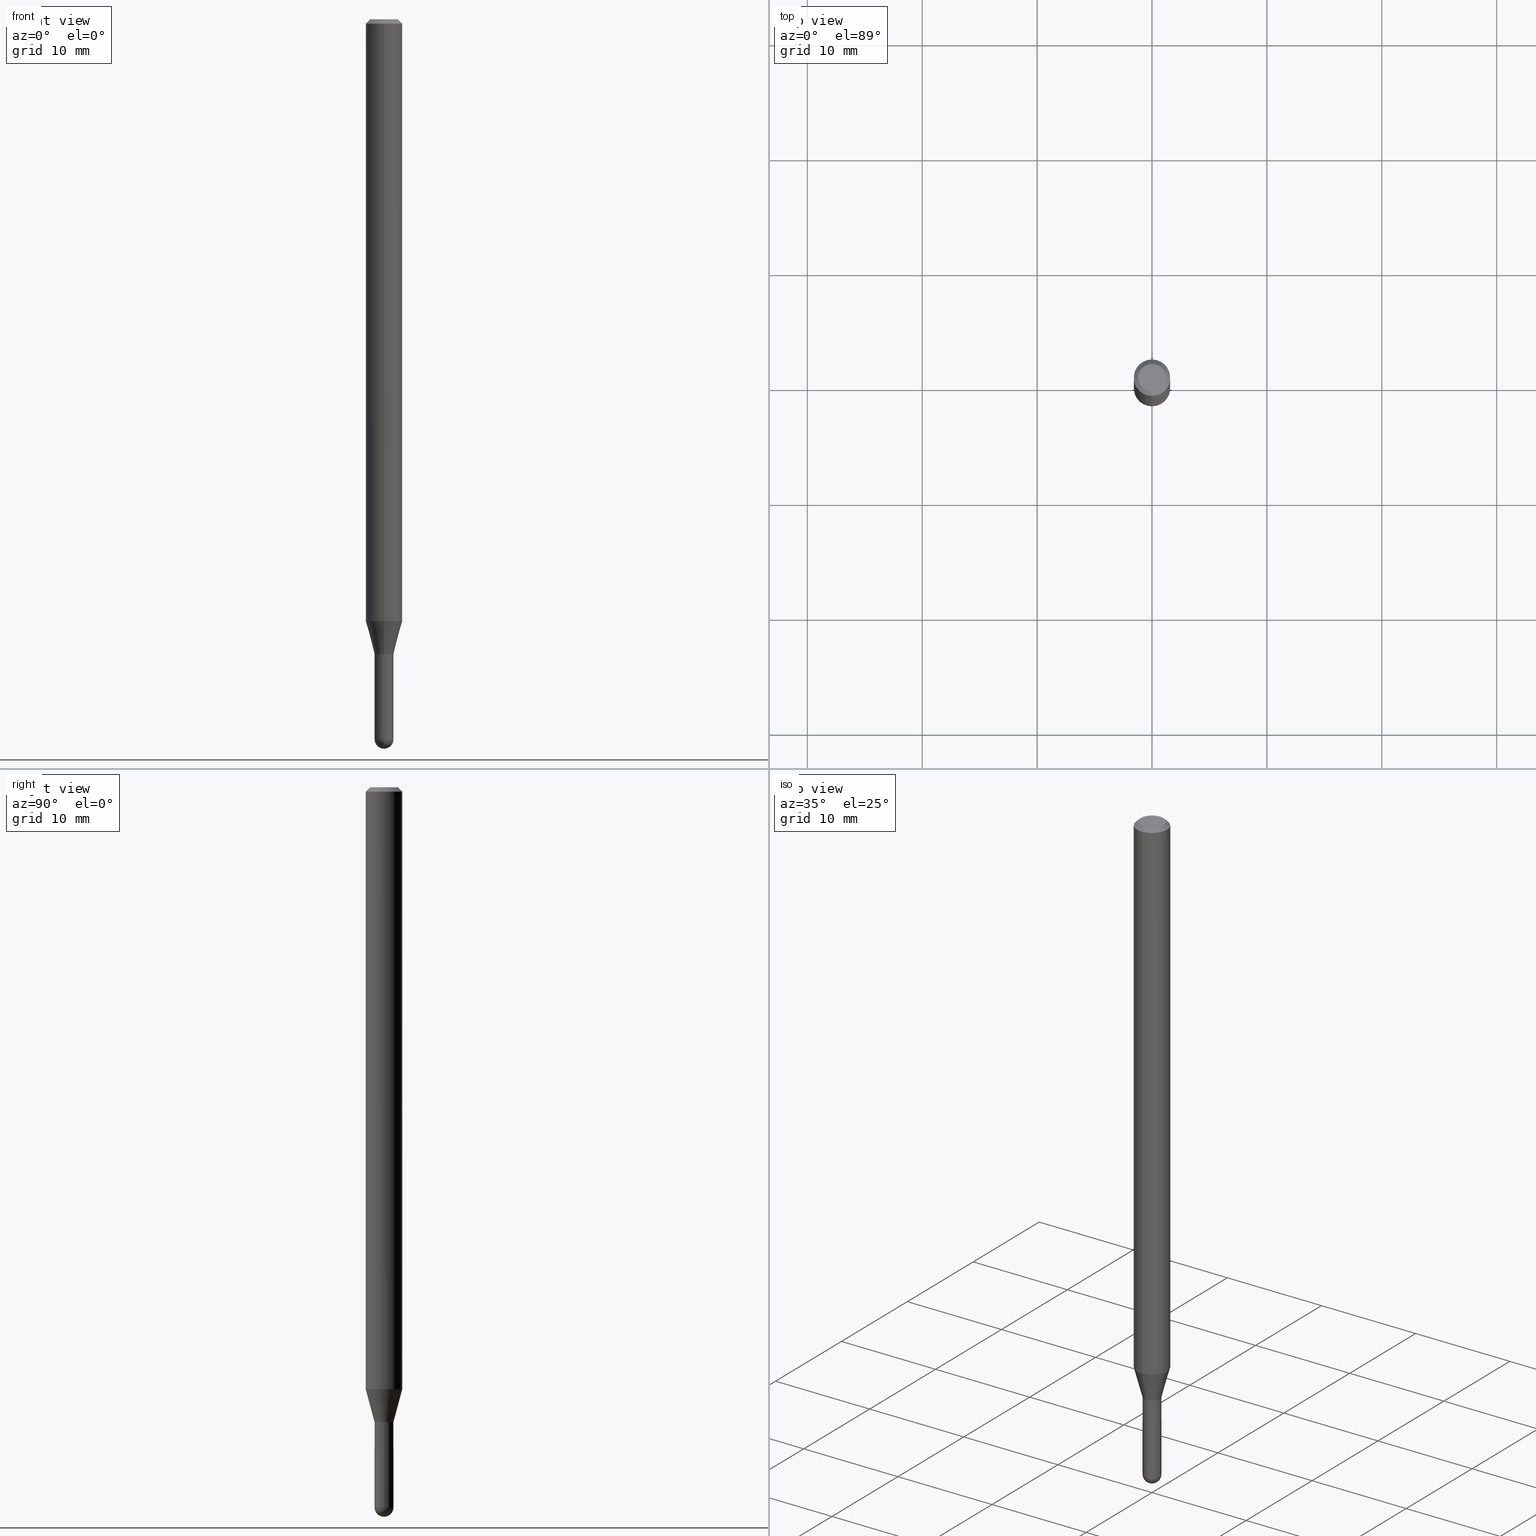
[diagram: canonical four-view strip — front | top / right | iso, engineering-drawing reading convention]
A machine part, canonical four-view strip (front | top / right | iso — engineering-drawing reading convention). The complete STEP part file that produces these views, byte-faithful:
ISO-10303-21;
HEADER;
FILE_DESCRIPTION (( 'STEP AP203' ),
    '1' );
FILE_NAME ('04468.STEP',
    '2024-03-08T19:49:59',
    ( '' ),
    ( '' ),
    'SwSTEP 2.0',
    'SolidWorks 2023',
    '' );
FILE_SCHEMA (( 'CONFIG_CONTROL_DESIGN' ));
ENDSEC;

DATA;
#1 = ADVANCED_FACE ( 'NONE', ( #213 ), #429, .T. ) ;
#2 = EDGE_LOOP ( 'NONE', ( #212, #403, #172, #53 ) ) ;
#3 = SHAPE_DEFINITION_REPRESENTATION ( #170, #280 ) ;
#4 = AXIS2_PLACEMENT_3D ( 'NONE', #461, #453, #380 ) ;
#5 = LOCAL_TIME ( 14, 49, 59.00000000000000000, #447 ) ;
#6 = DESIGN_CONTEXT ( 'detailed design', #73, 'design' ) ;
#7 = DIRECTION ( 'NONE',  ( -6.982962677686265133E-15, -1.000000000000000000, 0.000000000000000000 ) ) ;
#8 = DIRECTION ( 'NONE',  ( -2.445428605324870207E-29, 3.491538908763138017E-15, 1.000000000000000000 ) ) ;
#9 = LINE ( 'NONE', #167, #502 ) ;
#10 = ORIENTED_EDGE ( 'NONE', *, *, #84, .T. ) ;
#11 = CARTESIAN_POINT ( 'NONE',  ( 5.318807216581592405E-29, -7.594097126559824732E-15, -2.175000000000000266 ) ) ;
#12 = ADVANCED_FACE ( 'NONE', ( #216 ), #378, .F. ) ;
#13 = DIRECTION ( 'NONE',  ( -2.445428605324870207E-29, 3.491538908763138017E-15, 1.000000000000000000 ) ) ;
#14 = CARTESIAN_POINT ( 'NONE',  ( 6.034194279261823970E-29, -8.615230203595461689E-15, -2.467499999999999805 ) ) ;
#15 = VERTEX_POINT ( 'NONE', #16 ) ;
#16 = CARTESIAN_POINT ( 'NONE',  ( -2.309263891219727135E-16, -0.03250000000000868861, -2.467499999999999805 ) ) ;
#17 = DIRECTION ( 'NONE',  ( -2.445468806185136597E-29, 3.491481338843145583E-15, 1.000000000000000000 ) ) ;
#18 = ORIENTED_EDGE ( 'NONE', *, *, #84, .F. ) ;
#19 = AXIS2_PLACEMENT_3D ( 'NONE', #36, #355, #155 ) ;
#20 = CARTESIAN_POINT ( 'NONE',  ( 5.318807216581592405E-29, -7.594097126559824732E-15, -2.175000000000000266 ) ) ;
#21 = EDGE_CURVE ( 'NONE', #59, #411, #201, .T. ) ;
#22 = DIRECTION ( 'NONE',  ( -6.982962677686266711E-15, -1.000000000000000000, 3.491538908763138017E-15 ) ) ;
#23 = DIRECTION ( 'NONE',  ( -2.445428605324870207E-29, 3.491538908763138017E-15, 1.000000000000000000 ) ) ;
#24 = CARTESIAN_POINT ( 'NONE',  ( 2.291500322826851699E-16, 0.03199999999999240258, -2.175000000000000266 ) ) ;
#25 = APPROVAL ( #509, 'UNSPECIFIED' ) ;
#26 = DIRECTION ( 'NONE',  ( 1.839019923739650408E-15, 0.2588190451025320082, 0.9659258262890650926 ) ) ;
#27 = DIRECTION ( 'NONE',  ( -2.445428605324870207E-29, 3.491538908763138017E-15, 1.000000000000000000 ) ) ;
#28 = PERSON_AND_ORGANIZATION_ROLE ( 'creator' ) ;
#29 = DIRECTION ( 'NONE',  ( -2.445428605324870207E-29, 3.491538908763138017E-15, 1.000000000000000000 ) ) ;
#30 = AXIS2_PLACEMENT_3D ( 'NONE', #318, #237, #476 ) ;
#31 = FACE_OUTER_BOUND ( 'NONE', #199, .T. ) ;
#32 = CARTESIAN_POINT ( 'NONE',  ( -4.287811248607203282E-16, -0.06250000000000005551, -0.01499999999999984852 ) ) ;
#33 = CARTESIAN_POINT ( 'NONE',  ( 0.000000000000000000, 0.000000000000000000, 0.000000000000000000 ) ) ;
#34 = LINE ( 'NONE', #385, #226 ) ;
#35 = EDGE_CURVE ( 'NONE', #401, #92, #107, .T. ) ;
#36 = CARTESIAN_POINT ( 'NONE',  ( 5.045013302540962322E-29, -7.203179108436612378E-15, -2.063038475772938085 ) ) ;
#37 = DATE_AND_TIME ( #234, #187 ) ;
#38 = CC_DESIGN_APPROVAL ( #25, ( #398 ) ) ;
#39 = AXIS2_PLACEMENT_3D ( 'NONE', #11, #171, #506 ) ;
#40 = LINE ( 'NONE', #159, #85 ) ;
#41 = ORIENTED_EDGE ( 'NONE', *, *, #314, .T. ) ;
#42 = ORIENTED_EDGE ( 'NONE', *, *, #487, .T. ) ;
#43 = CIRCLE ( 'NONE', #434, 0.03250000000000000111 ) ;
#44 = ORIENTED_EDGE ( 'NONE', *, *, #268, .T. ) ;
#45 = ORIENTED_EDGE ( 'NONE', *, *, #121, .F. ) ;
#46 = AXIS2_PLACEMENT_3D ( 'NONE', #192, #265, #302 ) ;
#47 = LENGTH_MEASURE_WITH_UNIT ( LENGTH_MEASURE( 0.02539999999999999897 ), #218 );
#48 = EDGE_CURVE ( 'NONE', #452, #416, #9, .T. ) ;
#49 = AXIS2_PLACEMENT_3D ( 'NONE', #458, #67, #181 ) ;
#50 = EDGE_LOOP ( 'NONE', ( #472, #399, #377, #481 ) ) ;
#51 = FACE_OUTER_BOUND ( 'NONE', #215, .T. ) ;
#52 = PRODUCT_RELATED_PRODUCT_CATEGORY ( 'detail', '', ( #448 ) ) ;
#53 = ORIENTED_EDGE ( 'NONE', *, *, #487, .F. ) ;
#54 = ORIENTED_EDGE ( 'NONE', *, *, #374, .F. ) ;
#55 = PERSON_AND_ORGANIZATION ( #300, #466 ) ;
#56 = ORIENTED_EDGE ( 'NONE', *, *, #251, .T. ) ;
#57 = EDGE_CURVE ( 'NONE', #479, #133, #177, .T. ) ;
#58 = EDGE_LOOP ( 'NONE', ( #54, #103, #164, #440 ) ) ;
#59 = VERTEX_POINT ( 'NONE', #407 ) ;
#60 = CLOSED_SHELL ( 'NONE', ( #198, #384, #449, #255, #80, #169, #480, #1, #166, #12, #459, #211 ) ) ;
#61 = CARTESIAN_POINT ( 'NONE',  ( 3.375077994861001501E-16, 0.03249999999999260425, -2.175000000000000266 ) ) ;
#62 = CARTESIAN_POINT ( 'NONE',  ( -2.269462870247518301E-16, -0.03250000000000779349, -2.175000000000000266 ) ) ;
#63 = CARTESIAN_POINT ( 'NONE',  ( 0.000000000000000000, 0.000000000000000000, 0.000000000000000000 ) ) ;
#64 = DIRECTION ( 'NONE',  ( 1.000000000000000000, -6.982962677686267499E-15, 4.876176775795936353E-29 ) ) ;
#65 = CARTESIAN_POINT ( 'NONE',  ( 5.045013302540962322E-29, -7.203179108436612378E-15, -2.063038475772938085 ) ) ;
#66 = SECURITY_CLASSIFICATION_LEVEL ( 'unclassified' ) ;
#67 = DIRECTION ( 'NONE',  ( -1.000000000000000000, 7.105427357601001070E-15, -4.926315508542082329E-29 ) ) ;
#68 = DIRECTION ( 'NONE',  ( 6.982962677686265922E-15, 1.000000000000000000, -3.491538908763138017E-15 ) ) ;
#69 = EDGE_CURVE ( 'NONE', #479, #401, #337, .T. ) ;
#70 = CARTESIAN_POINT ( 'NONE',  ( -4.364351673553413302E-16, -0.06250000000000723033, -2.063038475772938085 ) ) ;
#71 = DIRECTION ( 'NONE',  ( 6.982962677686266711E-15, 1.000000000000000000, 0.000000000000000000 ) ) ;
#72 = PERSON_AND_ORGANIZATION ( #300, #466 ) ;
#73 = APPLICATION_CONTEXT ( 'configuration controlled 3d designs of mechanical parts and assemblies' ) ;
#74 = ORIENTED_EDGE ( 'NONE', *, *, #240, .F. ) ;
#75 = MANIFOLD_SOLID_BREP ( 'Body-Move/Copy2[2]', #60 ) ;
#76 = DIRECTION ( 'NONE',  ( 1.000000000000000000, -6.982962677686287221E-15, 0.000000000000000000 ) ) ;
#77 = CARTESIAN_POINT ( 'NONE',  ( -4.364351673553912750E-16, -0.06250000000000005551, -0.01499999999999984852 ) ) ;
#78 = COORDINATED_UNIVERSAL_TIME_OFFSET ( 5, 0, .BEHIND. ) ;
#79 = FACE_OUTER_BOUND ( 'NONE', #2, .T. ) ;
#80 = ADVANCED_FACE ( 'NONE', ( #370 ), #369, .T. ) ;
#81 = APPROVAL_ROLE ( '' ) ;
#82 = AXIS2_PLACEMENT_3D ( 'NONE', #431, #152, #312 ) ;
#83 = ORIENTED_EDGE ( 'NONE', *, *, #511, .T. ) ;
#84 = EDGE_CURVE ( 'NONE', #133, #92, #410, .T. ) ;
#85 = VECTOR ( 'NONE', #364, 39.37007874015748143 ) ;
#86 = CC_DESIGN_APPROVAL ( #389, ( #468 ) ) ;
#87 = VECTOR ( 'NONE', #257, 39.37007874015748143 ) ;
#88 = EDGE_LOOP ( 'NONE', ( #443, #243, #238, #130 ) ) ;
#89 = ORIENTED_EDGE ( 'NONE', *, *, #473, .T. ) ;
#90 = CARTESIAN_POINT ( 'NONE',  ( 0.000000000000000000, 0.000000000000000000, 0.000000000000000000 ) ) ;
#91 = SPHERICAL_SURFACE ( 'NONE', #30, 0.03250000000000013989 ) ;
#92 = VERTEX_POINT ( 'NONE', #150 ) ;
#93 = CARTESIAN_POINT ( 'NONE',  ( -0.03250000000000000111, -7.873674668667618619E-15, -2.175000000000000266 ) ) ;
#94 = ORIENTED_EDGE ( 'NONE', *, *, #35, .F. ) ;
#95 = CIRCLE ( 'NONE', #46, 0.03250000000000000111 ) ;
#96 = DATE_AND_TIME ( #292, #445 ) ;
#97 = AXIS2_PLACEMENT_3D ( 'NONE', #20, #180, #372 ) ;
#98 = VECTOR ( 'NONE', #106, 39.37007874015748143 ) ;
#99 = VERTEX_POINT ( 'NONE', #266 ) ;
#100 = EDGE_LOOP ( 'NONE', ( #366, #365, #361, #18 ) ) ;
#101 = CALENDAR_DATE ( 2024, 8, 3 ) ;
#102 = ORIENTED_EDGE ( 'NONE', *, *, #176, .T. ) ;
#103 = ORIENTED_EDGE ( 'NONE', *, *, #408, .T. ) ;
#104 = CARTESIAN_POINT ( 'NONE',  ( 3.668142907987321705E-31, -5.237308363144729655E-17, -0.01500000000000006710 ) ) ;
#105 = EDGE_LOOP ( 'NONE', ( #433, #89, #42, #83, #486 ) ) ;
#106 = DIRECTION ( 'NONE',  ( -2.445428605324870207E-29, 3.491538908763138017E-15, 1.000000000000000000 ) ) ;
#107 = LINE ( 'NONE', #326, #87 ) ;
#108 = CARTESIAN_POINT ( 'NONE',  ( 5.318807216581592405E-29, -7.594097126559824732E-15, -2.175000000000000266 ) ) ;
#109 = DIRECTION ( 'NONE',  ( -6.982962677686265922E-15, -1.000000000000000000, 3.491538908763137622E-15 ) ) ;
#110 = PERSON_AND_ORGANIZATION ( #300, #466 ) ;
#111 = LINE ( 'NONE', #195, #98 ) ;
#112 = CYLINDRICAL_SURFACE ( 'NONE', #503, 0.03250000000000006356 ) ;
#113 = EDGE_CURVE ( 'NONE', #125, #416, #118, .T. ) ;
#114 = DIRECTION ( 'NONE',  ( -2.445428605324870207E-29, 3.491538908763138017E-15, 1.000000000000000000 ) ) ;
#115 = CARTESIAN_POINT ( 'NONE',  ( 5.317584502278931047E-29, -7.592351357105445455E-15, -2.174500000000000099 ) ) ;
#116 = AXIS2_PLACEMENT_3D ( 'NONE', #90, #376, #138 ) ;
#117 = LINE ( 'NONE', #32, #442 ) ;
#118 = LINE ( 'NONE', #182, #358 ) ;
#119 = ADVANCED_FACE ( 'NONE', ( #31 ), #196, .F. ) ;
#120 = CARTESIAN_POINT ( 'NONE',  ( 2.309263891220329627E-16, 0.03250000000000006356, -1.134750145348021985E-16 ) ) ;
#121 = EDGE_CURVE ( 'NONE', #179, #253, #259, .T. ) ;
#122 = AXIS2_PLACEMENT_3D ( 'NONE', #65, #27, #308 ) ;
#123 = DIRECTION ( 'NONE',  ( -2.445428605324870207E-29, 3.491538908763138017E-15, 1.000000000000000000 ) ) ;
#124 = ADVANCED_FACE ( 'NONE', ( #190 ), #423, .T. ) ;
#125 = VERTEX_POINT ( 'NONE', #392 ) ;
#126 = CARTESIAN_POINT ( 'NONE',  ( 6.112282370242925616E-29, -8.730693398156478663E-15, -2.500000000000000000 ) ) ;
#127 = CONICAL_SURFACE ( 'NONE', #82, 0.03250000000000020234, 0.2617993877991576235 ) ;
#128 = ORIENTED_EDGE ( 'NONE', *, *, #202, .T. ) ;
#129 = DIRECTION ( 'NONE',  ( 6.982962677686265922E-15, 1.000000000000000000, -3.483106191921935554E-15 ) ) ;
#130 = ORIENTED_EDGE ( 'NONE', *, *, #176, .F. ) ;
#131 = ADVANCED_FACE ( 'NONE', ( #316 ), #223, .T. ) ;
#132 = CARTESIAN_POINT ( 'NONE',  ( 3.668142907987321705E-31, -5.237308363144729655E-17, -0.01500000000000006710 ) ) ;
#133 = VERTEX_POINT ( 'NONE', #498 ) ;
#134 = ORIENTED_EDGE ( 'NONE', *, *, #437, .T. ) ;
#135 = AXIS2_PLACEMENT_3D ( 'NONE', #391, #351, #64 ) ;
#136 = DIRECTION ( 'NONE',  ( -6.982962677686265922E-15, -1.000000000000000000, 3.483106191921935554E-15 ) ) ;
#137 = EDGE_LOOP ( 'NONE', ( #325, #286, #254, #293 ) ) ;
#138 = DIRECTION ( 'NONE',  ( -6.982962677686265922E-15, -1.000000000000000000, 3.491538908763138017E-15 ) ) ;
#139 = ORIENTED_EDGE ( 'NONE', *, *, #363, .T. ) ;
#140 = DIRECTION ( 'NONE',  ( 6.982962677686266711E-15, 1.000000000000000000, 0.000000000000000000 ) ) ;
#141 = VERTEX_POINT ( 'NONE', #350 ) ;
#142 = CARTESIAN_POINT ( 'NONE',  ( 5.318807216581592405E-29, -7.594097126559824732E-15, -2.175000000000000266 ) ) ;
#143 = DIRECTION ( 'NONE',  ( 2.445428605324869926E-29, -3.491538908763138017E-15, -1.000000000000000000 ) ) ;
#144 = MECHANICAL_CONTEXT ( 'NONE', #231, 'mechanical' ) ;
#145 = AXIS2_PLACEMENT_3D ( 'NONE', #294, #17, #333 ) ;
#146 = CIRCLE ( 'NONE', #197, 0.04749999999999999362 ) ;
#147 = DIRECTION ( 'NONE',  ( -6.982962677686265922E-15, -1.000000000000000000, 0.000000000000000000 ) ) ;
#148 = DIRECTION ( 'NONE',  ( -2.445428605324870207E-29, 3.491538908763138017E-15, 1.000000000000000000 ) ) ;
#149 = DIRECTION ( 'NONE',  ( 1.000000000000000000, -6.982962677686265922E-15, 4.883557194083112340E-29 ) ) ;
#150 = CARTESIAN_POINT ( 'NONE',  ( -2.269462870247506961E-16, -0.03250000000000762695, -2.174500000000000099 ) ) ;
#151 = CARTESIAN_POINT ( 'NONE',  ( 5.318807216581592405E-29, -7.594097126559824732E-15, -2.175000000000000266 ) ) ;
#152 = DIRECTION ( 'NONE',  ( -2.445428605324870207E-29, 3.491538908763138017E-15, 1.000000000000000000 ) ) ;
#153 = EDGE_CURVE ( 'NONE', #253, #133, #352, .T. ) ;
#154 = CONICAL_SURFACE ( 'NONE', #4, 0.06250000000000000000, 0.7853981633974483900 ) ;
#155 = DIRECTION ( 'NONE',  ( -6.982962677686265922E-15, -1.000000000000000000, 4.370956789862821150E-15 ) ) ;
#156 = CC_DESIGN_DATE_AND_TIME_ASSIGNMENT ( #37, #432, ( #398 ) ) ;
#157 = APPROVAL_DATE_TIME ( #347, #25 ) ;
#158 = CARTESIAN_POINT ( 'NONE',  ( 6.034194279261823970E-29, -8.615230203595461689E-15, -2.467499999999999805 ) ) ;
#159 = CARTESIAN_POINT ( 'NONE',  ( -0.03250000000000000111, 2.309263891220325683E-16, -1.598653904332844407E-30 ) ) ;
#160 = CIRCLE ( 'NONE', #122, 0.06250000000000000000 ) ;
#161 = ORIENTED_EDGE ( 'NONE', *, *, #153, .T. ) ;
#162 = AXIS2_PLACEMENT_3D ( 'NONE', #273, #395, #346 ) ;
#163 = APPROVAL_PERSON_ORGANIZATION ( #55, #371, #287 ) ;
#164 = ORIENTED_EDGE ( 'NONE', *, *, #473, .F. ) ;
#165 = DIRECTION ( 'NONE',  ( -6.982962677686265133E-15, -1.000000000000000000, 0.000000000000000000 ) ) ;
#166 = ADVANCED_FACE ( 'NONE', ( #263 ), #508, .F. ) ;
#167 = CARTESIAN_POINT ( 'NONE',  ( 4.440892098500625669E-16, 0.06250000000000000000, -2.182211817976961260E-16 ) ) ;
#168 = AXIS2_PLACEMENT_3D ( 'NONE', #33, #504, #344 ) ;
#169 = ADVANCED_FACE ( 'NONE', ( #383 ), #127, .T. ) ;
#170 = PRODUCT_DEFINITION_SHAPE ( 'NONE', 'NONE',  #436 ) ;
#171 = DIRECTION ( 'NONE',  ( -2.445428605324870207E-29, 3.491538908763138017E-15, 1.000000000000000000 ) ) ;
#172 = ORIENTED_EDGE ( 'NONE', *, *, #363, .F. ) ;
#173 = DIRECTION ( 'NONE',  ( -2.445428605324870207E-29, 3.491538908763138017E-15, 1.000000000000000000 ) ) ;
#174 = PERSON_AND_ORGANIZATION_ROLE ( 'creator' ) ;
#175 = VERTEX_POINT ( 'NONE', #77 ) ;
#176 = EDGE_CURVE ( 'NONE', #452, #298, #405, .T. ) ;
#177 = LINE ( 'NONE', #242, #269 ) ;
#178 = AXIS2_PLACEMENT_3D ( 'NONE', #63, #299, #455 ) ;
#179 = VERTEX_POINT ( 'NONE', #225 ) ;
#180 = DIRECTION ( 'NONE',  ( -2.445428605324869926E-29, 3.491538908763138017E-15, 1.000000000000000000 ) ) ;
#181 = DIRECTION ( 'NONE',  ( -7.105427357601000281E-15, -1.000000000000000000, 0.000000000000000000 ) ) ;
#182 = CARTESIAN_POINT ( 'NONE',  ( 4.364351673553919652E-16, 0.06249999999999995143, -0.01500000000000028394 ) ) ;
#183 = DIRECTION ( 'NONE',  ( -2.445468806185136877E-29, 3.491481338843145188E-15, 1.000000000000000000 ) ) ;
#184 = DIRECTION ( 'NONE',  ( -6.982962677686265133E-15, -1.000000000000000000, 0.000000000000000000 ) ) ;
#185 = CARTESIAN_POINT ( 'NONE',  ( 3.316907271900976096E-16, 0.04749999999999999362, -1.985968479068473336E-16 ) ) ;
#186 = AXIS2_PLACEMENT_3D ( 'NONE', #501, #29, #147 ) ;
#187 = LOCAL_TIME ( 14, 49, 59.00000000000000000, #78 ) ;
#188 = CIRCLE ( 'NONE', #478, 0.04749999999999999362 ) ;
#189 = CYLINDRICAL_SURFACE ( 'NONE', #135, 0.03250000000000000111 ) ;
#190 = FACE_OUTER_BOUND ( 'NONE', #58, .T. ) ;
#191 = APPROVAL_STATUS ( 'not_yet_approved' ) ;
#192 = CARTESIAN_POINT ( 'NONE',  ( 5.318894653452672995E-29, -7.593971911983841869E-15, -2.175000000000000266 ) ) ;
#193 = EDGE_CURVE ( 'NONE', #179, #298, #470, .T. ) ;
#194 = DIRECTION ( 'NONE',  ( -6.982962677686265133E-15, -1.000000000000000000, 0.000000000000000000 ) ) ;
#195 = CARTESIAN_POINT ( 'NONE',  ( -4.364351673553916201E-16, -0.06250000000000000000, 2.182211817976961260E-16 ) ) ;
#196 = PLANE ( 'NONE',  #162 ) ;
#197 = AXIS2_PLACEMENT_3D ( 'NONE', #261, #148, #421 ) ;
#198 = ADVANCED_FACE ( 'NONE', ( #220 ), #381, .F. ) ;
#199 = EDGE_LOOP ( 'NONE', ( #288, #44 ) ) ;
#200 = CIRCLE ( 'NONE', #186, 0.03249999999999992478 ) ;
#201 = CIRCLE ( 'NONE', #206, 0.03250000000000000111 ) ;
#202 = EDGE_CURVE ( 'NONE', #419, #125, #146, .T. ) ;
#203 = ORIENTED_EDGE ( 'NONE', *, *, #496, .F. ) ;
#204 = EDGE_CURVE ( 'NONE', #298, #452, #160, .T. ) ;
#205 = AXIS2_PLACEMENT_3D ( 'NONE', #345, #311, #76 ) ;
#206 = AXIS2_PLACEMENT_3D ( 'NONE', #14, #342, #494 ) ;
#207 = DIRECTION ( 'NONE',  ( -6.982962677686265133E-15, -1.000000000000000000, 0.000000000000000000 ) ) ;
#208 =( CONVERSION_BASED_UNIT ( 'INCH', #47 ) LENGTH_UNIT ( ) NAMED_UNIT ( #359 ) );
#209 = CLOSED_SHELL ( 'NONE', ( #131, #124, #119, #464, #327 ) ) ;
#210 = EDGE_LOOP ( 'NONE', ( #362, #439, #435, #94 ) ) ;
#211 = ADVANCED_FACE ( 'NONE', ( #460 ), #112, .F. ) ;
#212 = ORIENTED_EDGE ( 'NONE', *, *, #408, .F. ) ;
#213 = FACE_OUTER_BOUND ( 'NONE', #137, .T. ) ;
#214 = DATE_TIME_ROLE ( 'creation_date' ) ;
#215 = EDGE_LOOP ( 'NONE', ( #368, #102, #248, #203 ) ) ;
#216 = FACE_OUTER_BOUND ( 'NONE', #328, .T. ) ;
#217 = VECTOR ( 'NONE', #183, 39.37007874015748143 ) ;
#218 =( LENGTH_UNIT ( ) NAMED_UNIT ( * ) SI_UNIT ( $, .METRE. ) );
#219 = CARTESIAN_POINT ( 'NONE',  ( -3.773273898774340269E-16, -0.04749999999999999362, 1.003505986850524622E-16 ) ) ;
#220 = FACE_OUTER_BOUND ( 'NONE', #249, .T. ) ;
#221 = EDGE_CURVE ( 'NONE', #411, #252, #40, .T. ) ;
#222 = FACE_OUTER_BOUND ( 'NONE', #210, .T. ) ;
#223 = CYLINDRICAL_SURFACE ( 'NONE', #168, 0.03250000000000000111 ) ;
#224 = CARTESIAN_POINT ( 'NONE',  ( -2.234548056859072945E-16, -0.03200000000000759182, -2.175000000000000266 ) ) ;
#225 = CARTESIAN_POINT ( 'NONE',  ( -2.269462870247518301E-16, -0.03250000000000779349, -2.175000000000000266 ) ) ;
#226 = VECTOR ( 'NONE', #505, 39.37007874015748143 ) ;
#227 = CC_DESIGN_APPROVAL ( #371, ( #436 ) ) ;
#228 = DIRECTION ( 'NONE',  ( -4.851104656540964275E-15, -0.7071067811865500152, -0.7071067811865450192 ) ) ;
#229 = DIRECTION ( 'NONE',  ( -6.982962677686265922E-15, -1.000000000000000000, 0.000000000000000000 ) ) ;
#230 = PERSON_AND_ORGANIZATION_ROLE ( 'classification_officer' ) ;
#231 = APPLICATION_CONTEXT ( 'configuration controlled 3d designs of mechanical parts and assemblies' ) ;
#232 = CARTESIAN_POINT ( 'NONE',  ( 4.440892098501133991E-16, 0.06249999999999995143, -0.01500000000000028394 ) ) ;
#233 = DIRECTION ( 'NONE',  ( 4.937700262164548042E-15, 0.7071067811865451302, -0.7071067811865499042 ) ) ;
#234 = CALENDAR_DATE ( 2024, 8, 3 ) ;
#235 = CALENDAR_DATE ( 2024, 8, 3 ) ;
#236 = CARTESIAN_POINT ( 'NONE',  ( 0.000000000000000000, 0.000000000000000000, 0.000000000000000000 ) ) ;
#237 = DIRECTION ( 'NONE',  ( -1.000000000000000000, 6.982962677686266711E-15, -4.883557194083112901E-29 ) ) ;
#238 = ORIENTED_EDGE ( 'NONE', *, *, #193, .T. ) ;
#239 = CIRCLE ( 'NONE', #319, 0.03200000000000000067 ) ;
#240 = EDGE_CURVE ( 'NONE', #253, #179, #289, .T. ) ;
#241 = AXIS2_PLACEMENT_3D ( 'NONE', #428, #467, #71 ) ;
#242 = CARTESIAN_POINT ( 'NONE',  ( 2.273736754432852137E-16, 0.03199999999999240258, -2.175000000000000266 ) ) ;
#243 = ORIENTED_EDGE ( 'NONE', *, *, #240, .T. ) ;
#244 = AXIS2_PLACEMENT_3D ( 'NONE', #108, #349, #382 ) ;
#245 = VERTEX_POINT ( 'NONE', #126 ) ;
#246 = APPROVAL_DATE_TIME ( #96, #371 ) ;
#247 = AXIS2_PLACEMENT_3D ( 'NONE', #497, #149, #140 ) ;
#248 = ORIENTED_EDGE ( 'NONE', *, *, #317, .T. ) ;
#249 = EDGE_LOOP ( 'NONE', ( #74, #161, #10, #414 ) ) ;
#250 = DATE_AND_TIME ( #101, #5 ) ;
#251 = EDGE_CURVE ( 'NONE', #175, #416, #427, .T. ) ;
#252 = VERTEX_POINT ( 'NONE', #93 ) ;
#253 = VERTEX_POINT ( 'NONE', #61 ) ;
#254 = ORIENTED_EDGE ( 'NONE', *, *, #113, .T. ) ;
#255 = ADVANCED_FACE ( 'NONE', ( #417 ), #354, .T. ) ;
#256 = DIRECTION ( 'NONE',  ( -2.445428605324870207E-29, 3.491538908763138017E-15, 1.000000000000000000 ) ) ;
#257 = DIRECTION ( 'NONE',  ( -4.937700262164674260E-15, -0.7071067811865632269, 0.7071067811865319186 ) ) ;
#258 = CARTESIAN_POINT ( 'NONE',  ( 0.03250000000000000111, -2.269462870248036977E-16, 1.584757452133679343E-30 ) ) ;
#259 = CIRCLE ( 'NONE', #477, 0.03250000000000020234 ) ;
#260 = FACE_OUTER_BOUND ( 'NONE', #100, .T. ) ;
#261 = CARTESIAN_POINT ( 'NONE',  ( 1.601694588085689243E-45, -2.286870678652912859E-31, -6.549749948119656445E-17 ) ) ;
#262 = FACE_OUTER_BOUND ( 'NONE', #105, .T. ) ;
#263 = FACE_OUTER_BOUND ( 'NONE', #512, .T. ) ;
#264 = COORDINATED_UNIVERSAL_TIME_OFFSET ( 5, 0, .BEHIND. ) ;
#265 = DIRECTION ( 'NONE',  ( -2.445468806185136597E-29, 3.491481338843145583E-15, 1.000000000000000000 ) ) ;
#266 = CARTESIAN_POINT ( 'NONE',  ( 0.03250000000000000111, -7.820918199008645222E-15, -2.175000000000000266 ) ) ;
#267 = CIRCLE ( 'NONE', #247, 0.03250000000000013989 ) ;
#268 = EDGE_CURVE ( 'NONE', #252, #99, #95, .T. ) ;
#269 = VECTOR ( 'NONE', #283, 39.37007874015748143 ) ;
#270 = DIRECTION ( 'NONE',  ( -2.445428605324870207E-29, 3.491538908763138017E-15, 1.000000000000000000 ) ) ;
#271 = DIRECTION ( 'NONE',  ( -2.445428605324870207E-29, 3.491538908763138017E-15, 1.000000000000000000 ) ) ;
#272 = DATE_AND_TIME ( #353, #315 ) ;
#273 = CARTESIAN_POINT ( 'NONE',  ( 2.269462870248568472E-16, 0.03249999999999240302, -2.175000000000000266 ) ) ;
#274 = AXIS2_PLACEMENT_3D ( 'NONE', #465, #420, #430 ) ;
#275 = LOCAL_TIME ( 14, 49, 59.00000000000000000, #471 ) ;
#276 = AXIS2_PLACEMENT_3D ( 'NONE', #115, #310, #229 ) ;
#277 = ORIENTED_EDGE ( 'NONE', *, *, #193, .F. ) ;
#278 = AXIS2_PLACEMENT_3D ( 'NONE', #426, #456, #307 ) ;
#279 = CARTESIAN_POINT ( 'NONE',  ( 5.318807216581592405E-29, -7.594097126559824732E-15, -2.175000000000000266 ) ) ;
#280 = ADVANCED_BREP_SHAPE_REPRESENTATION ( '04468', ( #425, #75, #178 ), #404 ) ;
#281 = CONICAL_SURFACE ( 'NONE', #244, 0.03200000000000000067, 0.7853981633974739252 ) ;
#282 = ORIENTED_EDGE ( 'NONE', *, *, #357, .F. ) ;
#283 = DIRECTION ( 'NONE',  ( 5.024295867788190974E-15, 0.7071067811865681119, 0.7071067811865270336 ) ) ;
#284 = EDGE_LOOP ( 'NONE', ( #493, #390, #56, #413 ) ) ;
#285 = DIRECTION ( 'NONE',  ( -6.982962677686265922E-15, -1.000000000000000000, 3.483106191921935554E-15 ) ) ;
#286 = ORIENTED_EDGE ( 'NONE', *, *, #314, .F. ) ;
#287 = APPROVAL_ROLE ( '' ) ;
#288 = ORIENTED_EDGE ( 'NONE', *, *, #295, .T. ) ;
#289 = CIRCLE ( 'NONE', #313, 0.03250000000000020234 ) ;
#290 = ORIENTED_EDGE ( 'NONE', *, *, #394, .T. ) ;
#291 = CC_DESIGN_PERSON_AND_ORGANIZATION_ASSIGNMENT ( #72, #28, ( #468 ) ) ;
#292 = CALENDAR_DATE ( 2024, 8, 3 ) ;
#293 = ORIENTED_EDGE ( 'NONE', *, *, #496, .T. ) ;
#294 = CARTESIAN_POINT ( 'NONE',  ( 6.034194279261823970E-29, -8.615230203595461689E-15, -2.467499999999999805 ) ) ;
#295 = EDGE_CURVE ( 'NONE', #99, #252, #335, .T. ) ;
#296 = ORIENTED_EDGE ( 'NONE', *, *, #221, .T. ) ;
#297 = CARTESIAN_POINT ( 'NONE',  ( 1.601694588085689243E-45, -2.286870678652912859E-31, -6.549749948119656445E-17 ) ) ;
#298 = VERTEX_POINT ( 'NONE', #70 ) ;
#299 = DIRECTION ( 'NONE',  ( 0.000000000000000000, 0.000000000000000000, 1.000000000000000000 ) ) ;
#300 = PERSON ( 'UNSPECIFIED', 'UNSPECIFIED', 'UNSPECIFIED', ('UNSPECIFIED'), ('UNSPECIFIED'), ('UNSPECIFIED') ) ;
#301 = EDGE_CURVE ( 'NONE', #419, #175, #117, .T. ) ;
#302 = DIRECTION ( 'NONE',  ( 1.000000000000000000, -6.982962677686258033E-15, 0.000000000000000000 ) ) ;
#303 = CIRCLE ( 'NONE', #205, 0.03250000000000000111 ) ;
#304 = CARTESIAN_POINT ( 'NONE',  ( 0.000000000000000000, 0.000000000000000000, 0.000000000000000000 ) ) ;
#305 = APPROVAL_ROLE ( '' ) ;
#306 = AXIS2_PLACEMENT_3D ( 'NONE', #483, #454, #129 ) ;
#307 = DIRECTION ( 'NONE',  ( 1.000000000000000000, -6.982962677686258033E-15, 0.000000000000000000 ) ) ;
#308 = DIRECTION ( 'NONE',  ( -6.982962677686265922E-15, -1.000000000000000000, 4.370956789862821150E-15 ) ) ;
#309 = FACE_OUTER_BOUND ( 'NONE', #284, .T. ) ;
#310 = DIRECTION ( 'NONE',  ( -2.445428605324870207E-29, 3.491538908763138017E-15, 1.000000000000000000 ) ) ;
#311 = DIRECTION ( 'NONE',  ( -2.445468806185136597E-29, 3.491481338843145583E-15, 1.000000000000000000 ) ) ;
#312 = DIRECTION ( 'NONE',  ( -6.982962677686265133E-15, -1.000000000000000000, 0.000000000000000000 ) ) ;
#313 = AXIS2_PLACEMENT_3D ( 'NONE', #279, #8, #165 ) ;
#314 = EDGE_CURVE ( 'NONE', #125, #419, #188, .T. ) ;
#315 = LOCAL_TIME ( 14, 49, 59.00000000000000000, #264 ) ;
#316 = FACE_OUTER_BOUND ( 'NONE', #491, .T. ) ;
#317 = EDGE_CURVE ( 'NONE', #298, #175, #111, .T. ) ;
#318 = CARTESIAN_POINT ( 'NONE',  ( 6.031414988821991097E-29, -8.619210305692690707E-15, -2.467499999999999805 ) ) ;
#319 = AXIS2_PLACEMENT_3D ( 'NONE', #151, #270, #184 ) ;
#320 = APPROVAL_PERSON_ORGANIZATION ( #469, #389, #305 ) ;
#321 = VECTOR ( 'NONE', #23, 39.37007874015748143 ) ;
#322 = VECTOR ( 'NONE', #26, 39.37007874015748854 ) ;
#323 = EDGE_LOOP ( 'NONE', ( #484, #45, #134, #290 ) ) ;
#324 = CC_DESIGN_PERSON_AND_ORGANIZATION_ASSIGNMENT ( #356, #360, ( #468 ) ) ;
#325 = ORIENTED_EDGE ( 'NONE', *, *, #301, .F. ) ;
#326 = CARTESIAN_POINT ( 'NONE',  ( -2.234548056859072945E-16, -0.03200000000000759182, -2.175000000000000266 ) ) ;
#327 = ADVANCED_FACE ( 'NONE', ( #262 ), #189, .T. ) ;
#328 = EDGE_LOOP ( 'NONE', ( #282, #330 ) ) ;
#329 = APPLICATION_PROTOCOL_DEFINITION ( 'international standard', 'config_control_design', 1994, #73 ) ;
#330 = ORIENTED_EDGE ( 'NONE', *, *, #69, .F. ) ;
#331 = CC_DESIGN_DATE_AND_TIME_ASSIGNMENT ( #250, #214, ( #436 ) ) ;
#332 = CARTESIAN_POINT ( 'NONE',  ( 5.318807216581592405E-29, -7.594097126559824732E-15, -2.175000000000000266 ) ) ;
#333 = DIRECTION ( 'NONE',  ( 1.000000000000000000, -6.982962677686287221E-15, 0.000000000000000000 ) ) ;
#334 = EDGE_LOOP ( 'NONE', ( #375, #338, #341, #277 ) ) ;
#335 = CIRCLE ( 'NONE', #278, 0.03250000000000000111 ) ;
#336 = CC_DESIGN_SECURITY_CLASSIFICATION ( #398, ( #468 ) ) ;
#337 = CIRCLE ( 'NONE', #510, 0.03200000000000000067 ) ;
#338 = ORIENTED_EDGE ( 'NONE', *, *, #340, .T. ) ;
#339 = PERSON_AND_ORGANIZATION_ROLE ( 'design_owner' ) ;
#340 = EDGE_CURVE ( 'NONE', #253, #452, #507, .T. ) ;
#341 = ORIENTED_EDGE ( 'NONE', *, *, #204, .F. ) ;
#342 = DIRECTION ( 'NONE',  ( -2.445468806185136597E-29, 3.491481338843145583E-15, 1.000000000000000000 ) ) ;
#343 = CARTESIAN_POINT ( 'NONE',  ( 4.440892098501128074E-16, 0.06249999999999276967, -2.063038475772938529 ) ) ;
#344 = DIRECTION ( 'NONE',  ( 1.000000000000000000, -6.982962677686267499E-15, 4.876176775795936353E-29 ) ) ;
#345 = CARTESIAN_POINT ( 'NONE',  ( 6.034194279261823970E-29, -8.615230203595461689E-15, -2.467499999999999805 ) ) ;
#346 = DIRECTION ( 'NONE',  ( -1.000000000000000000, 6.982962677686265922E-15, -4.876176775795935793E-29 ) ) ;
#347 = DATE_AND_TIME ( #235, #275 ) ;
#348 = AXIS2_PLACEMENT_3D ( 'NONE', #142, #114, #7 ) ;
#349 = DIRECTION ( 'NONE',  ( -2.445428605324870207E-29, 3.491538908763138017E-15, 1.000000000000000000 ) ) ;
#350 = CARTESIAN_POINT ( 'NONE',  ( 0.03250000000000000111, -8.331547344814454343E-15, -2.467499999999999805 ) ) ;
#351 = DIRECTION ( 'NONE',  ( -2.445468806185136597E-29, 3.491481338843145583E-15, 1.000000000000000000 ) ) ;
#352 = LINE ( 'NONE', #120, #321 ) ;
#353 = CALENDAR_DATE ( 2024, 8, 3 ) ;
#354 = CYLINDRICAL_SURFACE ( 'NONE', #274, 0.06250000000000000000 ) ;
#355 = DIRECTION ( 'NONE',  ( -2.445428605324870207E-29, 3.491538908763138017E-15, 1.000000000000000000 ) ) ;
#356 = PERSON_AND_ORGANIZATION ( #300, #466 ) ;
#357 = EDGE_CURVE ( 'NONE', #401, #479, #239, .T. ) ;
#358 = VECTOR ( 'NONE', #233, 39.37007874015748143 ) ;
#359 = DIMENSIONAL_EXPONENTS ( 1.000000000000000000, 0.000000000000000000, 0.000000000000000000, 0.000000000000000000, 0.000000000000000000, 0.000000000000000000, 0.000000000000000000 ) ;
#360 = PERSON_AND_ORGANIZATION_ROLE ( 'design_supplier' ) ;
#361 = ORIENTED_EDGE ( 'NONE', *, *, #35, .T. ) ;
#362 = ORIENTED_EDGE ( 'NONE', *, *, #357, .T. ) ;
#363 = EDGE_CURVE ( 'NONE', #141, #59, #303, .T. ) ;
#364 = DIRECTION ( 'NONE',  ( -2.445468806185136877E-29, 3.491481338843145188E-15, 1.000000000000000000 ) ) ;
#365 = ORIENTED_EDGE ( 'NONE', *, *, #69, .T. ) ;
#366 = ORIENTED_EDGE ( 'NONE', *, *, #57, .F. ) ;
#367 = AXIS2_PLACEMENT_3D ( 'NONE', #132, #13, #285 ) ;
#368 = ORIENTED_EDGE ( 'NONE', *, *, #48, .F. ) ;
#369 = CONICAL_SURFACE ( 'NONE', #39, 0.03250000000000020234, 0.2617993877991576235 ) ;
#370 = FACE_OUTER_BOUND ( 'NONE', #334, .T. ) ;
#371 = APPROVAL ( #485, 'UNSPECIFIED' ) ;
#372 = DIRECTION ( 'NONE',  ( -6.982962677686265922E-15, -1.000000000000000000, 3.491538908763138017E-15 ) ) ;
#373 =( NAMED_UNIT ( * ) SI_UNIT ( $, .STERADIAN. ) SOLID_ANGLE_UNIT ( ) );
#374 = EDGE_CURVE ( 'NONE', #245, #59, #267, .T. ) ;
#375 = ORIENTED_EDGE ( 'NONE', *, *, #121, .T. ) ;
#376 = DIRECTION ( 'NONE',  ( -2.445428605324870207E-29, 3.491538908763138017E-15, 1.000000000000000000 ) ) ;
#377 = ORIENTED_EDGE ( 'NONE', *, *, #251, .F. ) ;
#378 = PLANE ( 'NONE',  #97 ) ;
#379 = CYLINDRICAL_SURFACE ( 'NONE', #116, 0.06250000000000000000 ) ;
#380 = DIRECTION ( 'NONE',  ( 6.982962677686265922E-15, 1.000000000000000000, -3.483106191921935554E-15 ) ) ;
#381 = CYLINDRICAL_SURFACE ( 'NONE', #482, 0.03250000000000006356 ) ;
#382 = DIRECTION ( 'NONE',  ( -6.982962677686265133E-15, -1.000000000000000000, 0.000000000000000000 ) ) ;
#383 = FACE_OUTER_BOUND ( 'NONE', #88, .T. ) ;
#384 = ADVANCED_FACE ( 'NONE', ( #222 ), #281, .T. ) ;
#385 = CARTESIAN_POINT ( 'NONE',  ( -2.269462870248040921E-16, -0.03250000000000006356, 1.134750145348021985E-16 ) ) ;
#386 = CIRCLE ( 'NONE', #49, 0.03250000000000013989 ) ;
#387 = DIRECTION ( 'NONE',  ( -1.807323732225379838E-15, -0.2588190451025252914, 0.9659258262890670910 ) ) ;
#388 = AXIS2_PLACEMENT_3D ( 'NONE', #104, #489, #136 ) ;
#389 = APPROVAL ( #191, 'UNSPECIFIED' ) ;
#390 = ORIENTED_EDGE ( 'NONE', *, *, #301, .T. ) ;
#391 = CARTESIAN_POINT ( 'NONE',  ( 0.000000000000000000, 0.000000000000000000, 0.000000000000000000 ) ) ;
#392 = CARTESIAN_POINT ( 'NONE',  ( 3.840629472727447874E-16, 0.04749999999999999362, -2.313455976474456035E-16 ) ) ;
#393 = CARTESIAN_POINT ( 'NONE',  ( -0.03250000000000000111, -7.873674668667618619E-15, -2.467499999999999805 ) ) ;
#394 = EDGE_CURVE ( 'NONE', #92, #133, #200, .T. ) ;
#395 = DIRECTION ( 'NONE',  ( 2.438088387897960049E-29, -3.491481338843145188E-15, -1.000000000000000000 ) ) ;
#396 = PERSON_AND_ORGANIZATION ( #300, #466 ) ;
#397 = CC_DESIGN_PERSON_AND_ORGANIZATION_ASSIGNMENT ( #412, #174, ( #436 ) ) ;
#398 = SECURITY_CLASSIFICATION ( '', '', #66 ) ;
#399 = ORIENTED_EDGE ( 'NONE', *, *, #48, .T. ) ;
#400 = DIRECTION ( 'NONE',  ( -6.982962677686265922E-15, -1.000000000000000000, 3.491538908763137622E-15 ) ) ;
#401 = VERTEX_POINT ( 'NONE', #224 ) ;
#402 = UNCERTAINTY_MEASURE_WITH_UNIT (LENGTH_MEASURE( 1.000000000000000082E-05 ), #208, 'distance_accuracy_value', 'NONE');
#403 = ORIENTED_EDGE ( 'NONE', *, *, #374, .T. ) ;
#404 =( GEOMETRIC_REPRESENTATION_CONTEXT ( 3 ) GLOBAL_UNCERTAINTY_ASSIGNED_CONTEXT ( ( #402 ) ) GLOBAL_UNIT_ASSIGNED_CONTEXT ( ( #208, #415, #373 ) ) REPRESENTATION_CONTEXT ( 'NONE', 'WORKASPACE' ) );
#405 = CIRCLE ( 'NONE', #19, 0.06250000000000000000 ) ;
#406 = CC_DESIGN_PERSON_AND_ORGANIZATION_ASSIGNMENT ( #110, #230, ( #398 ) ) ;
#407 = CARTESIAN_POINT ( 'NONE',  ( 2.269462870248644893E-16, 0.03249999999999145933, -2.467499999999999805 ) ) ;
#408 = EDGE_CURVE ( 'NONE', #245, #15, #386, .T. ) ;
#409 = PERSON_AND_ORGANIZATION ( #300, #466 ) ;
#410 = CIRCLE ( 'NONE', #276, 0.03249999999999992478 ) ;
#411 = VERTEX_POINT ( 'NONE', #393 ) ;
#412 = PERSON_AND_ORGANIZATION ( #300, #466 ) ;
#413 = ORIENTED_EDGE ( 'NONE', *, *, #113, .F. ) ;
#414 = ORIENTED_EDGE ( 'NONE', *, *, #437, .F. ) ;
#415 =( NAMED_UNIT ( * ) PLANE_ANGLE_UNIT ( ) SI_UNIT ( $, .RADIAN. ) );
#416 = VERTEX_POINT ( 'NONE', #232 ) ;
#417 = FACE_OUTER_BOUND ( 'NONE', #50, .T. ) ;
#418 = VECTOR ( 'NONE', #387, 39.37007874015748143 ) ;
#419 = VERTEX_POINT ( 'NONE', #219 ) ;
#420 = DIRECTION ( 'NONE',  ( -2.445428605324870207E-29, 3.491538908763138017E-15, 1.000000000000000000 ) ) ;
#421 = DIRECTION ( 'NONE',  ( -6.982962677686266711E-15, -1.000000000000000000, 3.491538908763138017E-15 ) ) ;
#422 = CARTESIAN_POINT ( 'NONE',  ( 2.309263891220871476E-16, 0.03249999999999260425, -2.175000000000000266 ) ) ;
#423 = SPHERICAL_SURFACE ( 'NONE', #241, 0.03250000000000013989 ) ;
#424 = CC_DESIGN_PERSON_AND_ORGANIZATION_ASSIGNMENT ( #409, #339, ( #448 ) ) ;
#425 = MANIFOLD_SOLID_BREP ( 'Body-Move/Copy2[1]', #209 ) ;
#426 = CARTESIAN_POINT ( 'NONE',  ( 5.318894653452672995E-29, -7.593971911983841869E-15, -2.175000000000000266 ) ) ;
#427 = CIRCLE ( 'NONE', #367, 0.06250000000000000000 ) ;
#428 = CARTESIAN_POINT ( 'NONE',  ( 6.031414988821991097E-29, -8.619210305692690707E-15, -2.467499999999999805 ) ) ;
#429 = CONICAL_SURFACE ( 'NONE', #306, 0.06250000000000000000, 0.7853981633974483900 ) ;
#430 = DIRECTION ( 'NONE',  ( -6.982962677686265922E-15, -1.000000000000000000, 3.491538908763138017E-15 ) ) ;
#431 = CARTESIAN_POINT ( 'NONE',  ( 5.318807216581592405E-29, -7.594097126559824732E-15, -2.175000000000000266 ) ) ;
#432 = DATE_TIME_ROLE ( 'classification_date' ) ;
#433 = ORIENTED_EDGE ( 'NONE', *, *, #221, .F. ) ;
#434 = AXIS2_PLACEMENT_3D ( 'NONE', #158, #495, #492 ) ;
#435 = ORIENTED_EDGE ( 'NONE', *, *, #394, .F. ) ;
#436 = PRODUCT_DEFINITION ( 'UNKNOWN', '', #468, #6 ) ;
#437 = EDGE_CURVE ( 'NONE', #179, #92, #34, .T. ) ;
#438 = ORIENTED_EDGE ( 'NONE', *, *, #21, .T. ) ;
#439 = ORIENTED_EDGE ( 'NONE', *, *, #57, .T. ) ;
#440 = ORIENTED_EDGE ( 'NONE', *, *, #21, .F. ) ;
#441 = COORDINATED_UNIVERSAL_TIME_OFFSET ( 5, 0, .BEHIND. ) ;
#442 = VECTOR ( 'NONE', #228, 39.37007874015748143 ) ;
#443 = ORIENTED_EDGE ( 'NONE', *, *, #340, .F. ) ;
#444 = AXIS2_PLACEMENT_3D ( 'NONE', #185, #143, #68 ) ;
#445 = LOCAL_TIME ( 14, 49, 59.00000000000000000, #441 ) ;
#446 = ORIENTED_EDGE ( 'NONE', *, *, #511, .F. ) ;
#447 = COORDINATED_UNIVERSAL_TIME_OFFSET ( 5, 0, .BEHIND. ) ;
#448 = PRODUCT ( '04468', '04468', '', ( #144 ) ) ;
#449 = ADVANCED_FACE ( 'NONE', ( #309 ), #154, .T. ) ;
#450 = ORIENTED_EDGE ( 'NONE', *, *, #295, .F. ) ;
#451 = LINE ( 'NONE', #258, #217 ) ;
#452 = VERTEX_POINT ( 'NONE', #343 ) ;
#453 = DIRECTION ( 'NONE',  ( 2.445428605324870207E-29, -3.491538908763138017E-15, -1.000000000000000000 ) ) ;
#454 = DIRECTION ( 'NONE',  ( 2.445428605324870207E-29, -3.491538908763138017E-15, -1.000000000000000000 ) ) ;
#455 = DIRECTION ( 'NONE',  ( 1.000000000000000000, 0.000000000000000000, 0.000000000000000000 ) ) ;
#456 = DIRECTION ( 'NONE',  ( -2.445468806185136597E-29, 3.491481338843145583E-15, 1.000000000000000000 ) ) ;
#457 = DIRECTION ( 'NONE',  ( -2.445428605324870207E-29, 3.491538908763138017E-15, 1.000000000000000000 ) ) ;
#458 = CARTESIAN_POINT ( 'NONE',  ( 6.031414988821991097E-29, -8.619210305692690707E-15, -2.467499999999999805 ) ) ;
#459 = ADVANCED_FACE ( 'NONE', ( #260 ), #490, .T. ) ;
#460 = FACE_OUTER_BOUND ( 'NONE', #323, .T. ) ;
#461 = CARTESIAN_POINT ( 'NONE',  ( 3.668142907987321705E-31, -5.237308363144729655E-17, -0.01500000000000006710 ) ) ;
#462 = CARTESIAN_POINT ( 'NONE',  ( 5.318807216581592405E-29, -7.594097126559824732E-15, -2.175000000000000266 ) ) ;
#463 = APPROVAL_DATE_TIME ( #272, #389 ) ;
#464 = ADVANCED_FACE ( 'NONE', ( #79 ), #91, .T. ) ;
#465 = CARTESIAN_POINT ( 'NONE',  ( 0.000000000000000000, 0.000000000000000000, 0.000000000000000000 ) ) ;
#466 = ORGANIZATION ( 'UNSPECIFIED', 'UNSPECIFIED', '' ) ;
#467 = DIRECTION ( 'NONE',  ( -1.000000000000000000, 6.982962677686266711E-15, -4.883557194083112901E-29 ) ) ;
#468 = PRODUCT_DEFINITION_FORMATION_WITH_SPECIFIED_SOURCE ( 'ANY', '', #448, .NOT_KNOWN. ) ;
#469 = PERSON_AND_ORGANIZATION ( #300, #466 ) ;
#470 = LINE ( 'NONE', #62, #418 ) ;
#471 = COORDINATED_UNIVERSAL_TIME_OFFSET ( 5, 0, .BEHIND. ) ;
#472 = ORIENTED_EDGE ( 'NONE', *, *, #204, .T. ) ;
#473 = EDGE_CURVE ( 'NONE', #411, #15, #43, .T. ) ;
#474 = CIRCLE ( 'NONE', #145, 0.03250000000000000111 ) ;
#475 = APPROVAL_PERSON_ORGANIZATION ( #396, #25, #81 ) ;
#476 = DIRECTION ( 'NONE',  ( 6.982962677686266711E-15, 1.000000000000000000, 0.000000000000000000 ) ) ;
#477 = AXIS2_PLACEMENT_3D ( 'NONE', #462, #271, #194 ) ;
#478 = AXIS2_PLACEMENT_3D ( 'NONE', #297, #256, #22 ) ;
#479 = VERTEX_POINT ( 'NONE', #24 ) ;
#480 = ADVANCED_FACE ( 'NONE', ( #51 ), #379, .T. ) ;
#481 = ORIENTED_EDGE ( 'NONE', *, *, #317, .F. ) ;
#482 = AXIS2_PLACEMENT_3D ( 'NONE', #304, #457, #109 ) ;
#483 = CARTESIAN_POINT ( 'NONE',  ( 3.668142907987321705E-31, -5.237308363144729655E-17, -0.01500000000000006710 ) ) ;
#484 = ORIENTED_EDGE ( 'NONE', *, *, #153, .F. ) ;
#485 = APPROVAL_STATUS ( 'not_yet_approved' ) ;
#486 = ORIENTED_EDGE ( 'NONE', *, *, #268, .F. ) ;
#487 = EDGE_CURVE ( 'NONE', #15, #141, #474, .T. ) ;
#488 = DIRECTION ( 'NONE',  ( -2.445428605324870207E-29, 3.491538908763138017E-15, 1.000000000000000000 ) ) ;
#489 = DIRECTION ( 'NONE',  ( -2.445428605324870207E-29, 3.491538908763138017E-15, 1.000000000000000000 ) ) ;
#490 = CONICAL_SURFACE ( 'NONE', #348, 0.03200000000000000067, 0.7853981633974739252 ) ;
#491 = EDGE_LOOP ( 'NONE', ( #438, #296, #450, #446, #139 ) ) ;
#492 = DIRECTION ( 'NONE',  ( 1.000000000000000000, -6.982962677686287221E-15, 0.000000000000000000 ) ) ;
#493 = ORIENTED_EDGE ( 'NONE', *, *, #202, .F. ) ;
#494 = DIRECTION ( 'NONE',  ( 1.000000000000000000, -6.982962677686287221E-15, 0.000000000000000000 ) ) ;
#495 = DIRECTION ( 'NONE',  ( -2.445468806185136597E-29, 3.491481338843145583E-15, 1.000000000000000000 ) ) ;
#496 = EDGE_CURVE ( 'NONE', #416, #175, #500, .T. ) ;
#497 = CARTESIAN_POINT ( 'NONE',  ( 6.031414988821991097E-29, -8.619210305692690707E-15, -2.467499999999999805 ) ) ;
#498 = CARTESIAN_POINT ( 'NONE',  ( 2.309263891220843373E-16, 0.03249999999999221567, -2.174500000000000099 ) ) ;
#499 = APPLICATION_PROTOCOL_DEFINITION ( 'international standard', 'config_control_design', 1994, #231 ) ;
#500 = CIRCLE ( 'NONE', #388, 0.06250000000000000000 ) ;
#501 = CARTESIAN_POINT ( 'NONE',  ( 5.317584502278931047E-29, -7.592351357105445455E-15, -2.174500000000000099 ) ) ;
#502 = VECTOR ( 'NONE', #173, 39.37007874015748143 ) ;
#503 = AXIS2_PLACEMENT_3D ( 'NONE', #236, #123, #400 ) ;
#504 = DIRECTION ( 'NONE',  ( -2.445468806185136597E-29, 3.491481338843145583E-15, 1.000000000000000000 ) ) ;
#505 = DIRECTION ( 'NONE',  ( -2.445428605324870207E-29, 3.491538908763138017E-15, 1.000000000000000000 ) ) ;
#506 = DIRECTION ( 'NONE',  ( -6.982962677686265133E-15, -1.000000000000000000, 0.000000000000000000 ) ) ;
#507 = LINE ( 'NONE', #422, #322 ) ;
#508 = PLANE ( 'NONE',  #444 ) ;
#509 = APPROVAL_STATUS ( 'not_yet_approved' ) ;
#510 = AXIS2_PLACEMENT_3D ( 'NONE', #332, #488, #207 ) ;
#511 = EDGE_CURVE ( 'NONE', #141, #99, #451, .T. ) ;
#512 = EDGE_LOOP ( 'NONE', ( #41, #128 ) ) ;
ENDSEC;
END-ISO-10303-21;
